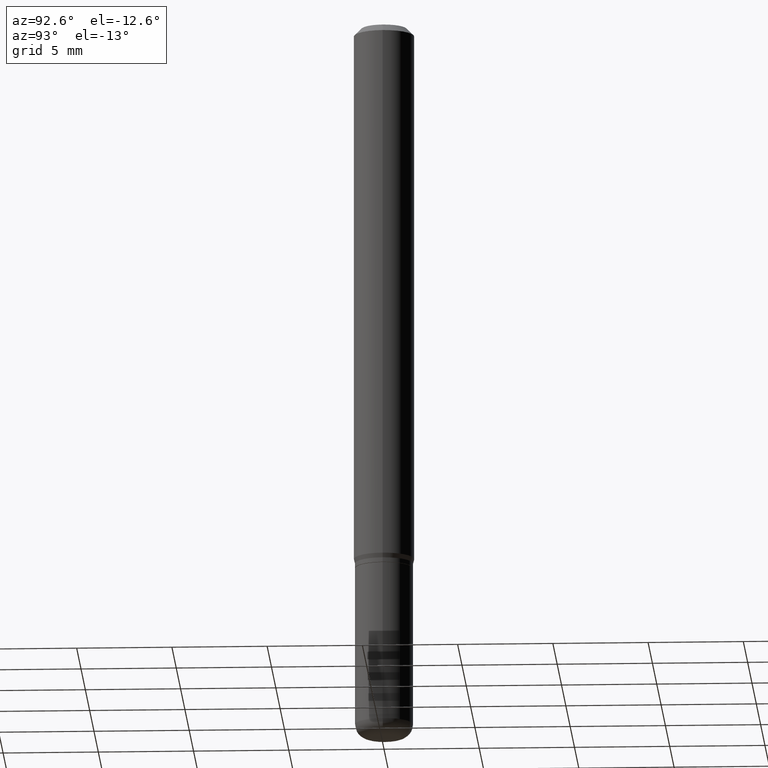
[diagram: clean part render]
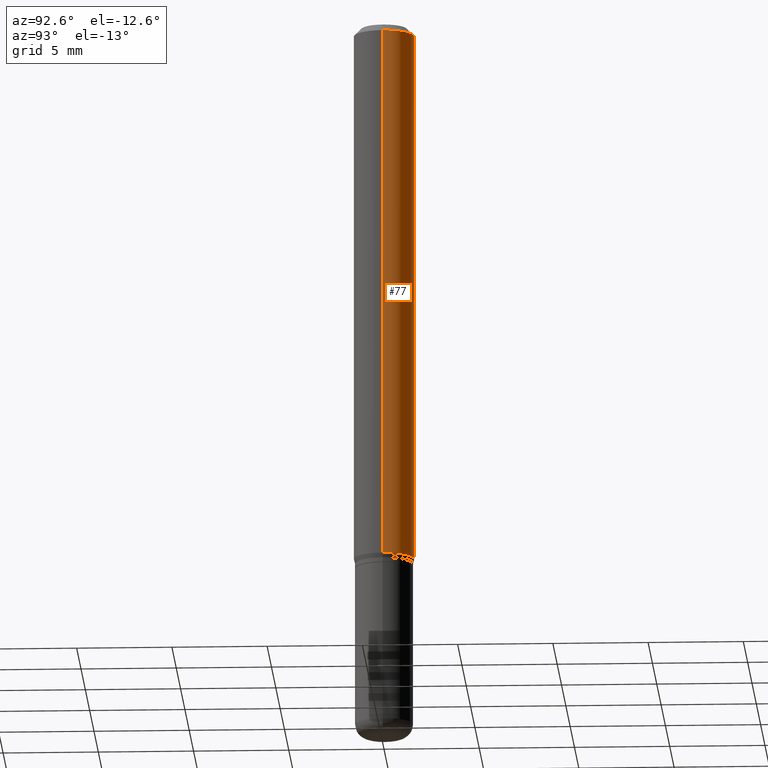
[diagram: same view with one face highlighted and labeled with its STEP entity id]
A machine part, auxiliary view. The second image highlights one B-rep face of the part: STEP entity #77.
In plain terms, the highlighted cylindrical surface (edge-blend (fillet) strip) has radius 1.5875 mm, axis along (-0, 0, 1).
Its self-contained STEP definition (entity closure, byte-faithful):
#20 = EDGE_CURVE ( 'NONE', #300, #424, #265, .T. ) ;
#54 = AXIS2_PLACEMENT_3D ( 'NONE', #264, #63, #66 ) ;
#63 = DIRECTION ( 'NONE',  ( -2.445468806185136597E-29, 3.491481338843145583E-15, 1.000000000000000000 ) ) ;
#66 = DIRECTION ( 'NONE',  ( 1.000000000000000000, -6.982962677686266711E-15, 0.000000000000000000 ) ) ;
#77 = ADVANCED_FACE ( 'NONE', ( #434 ), #436, .T. ) ;
#122 = VERTEX_POINT ( 'NONE', #239 ) ;
#130 = ORIENTED_EDGE ( 'NONE', *, *, #186, .F. ) ;
#139 = DIRECTION ( 'NONE',  ( -2.445468806185136877E-29, 3.491481338843145188E-15, 1.000000000000000000 ) ) ;
#186 = EDGE_CURVE ( 'NONE', #122, #226, #321, .T. ) ;
#189 = CARTESIAN_POINT ( 'NONE',  ( 0.06250000000000000000, -4.888073874380378612E-16, -0.01499999999999970281 ) ) ;
#193 = CARTESIAN_POINT ( 'NONE',  ( 0.06250000000000000000, -4.364351673553916694E-16, 3.047610484872459871E-30 ) ) ;
#194 = DIRECTION ( 'NONE',  ( -2.445468806185136597E-29, 3.491481338843145583E-15, 1.000000000000000000 ) ) ;
#200 = DIRECTION ( 'NONE',  ( -2.445468806185136597E-29, 3.491481338843145583E-15, 1.000000000000000000 ) ) ;
#204 = VECTOR ( 'NONE', #358, 39.37007874015748143 ) ;
#206 = CARTESIAN_POINT ( 'NONE',  ( 2.740563216406686274E-29, -3.912797948517153280E-15, -1.120669872981078452 ) ) ;
#224 = ORIENTED_EDGE ( 'NONE', *, *, #262, .T. ) ;
#226 = VERTEX_POINT ( 'NONE', #189 ) ;
#239 = CARTESIAN_POINT ( 'NONE',  ( 0.06250000000000000000, -4.349233115872544950E-15, -1.120669872981078452 ) ) ;
#241 = CIRCLE ( 'NONE', #54, 0.06250000000000000000 ) ;
#262 = EDGE_CURVE ( 'NONE', #122, #300, #431, .T. ) ;
#264 = CARTESIAN_POINT ( 'NONE',  ( 3.668203209277632395E-31, -5.237222008264614861E-17, -0.01499999999999970281 ) ) ;
#265 = LINE ( 'NONE', #386, #420 ) ;
#300 = VERTEX_POINT ( 'NONE', #373 ) ;
#321 = LINE ( 'NONE', #193, #204 ) ;
#326 = DIRECTION ( 'NONE',  ( 1.000000000000000000, -6.982962677686266711E-15, 4.876176775795935793E-29 ) ) ;
#329 = AXIS2_PLACEMENT_3D ( 'NONE', #518, #194, #326 ) ;
#358 = DIRECTION ( 'NONE',  ( -2.445468806185136877E-29, 3.491481338843145188E-15, 1.000000000000000000 ) ) ;
#368 = ORIENTED_EDGE ( 'NONE', *, *, #484, .F. ) ;
#373 = CARTESIAN_POINT ( 'NONE',  ( -0.06250000000000000000, -3.468708738667090664E-15, -1.120669872981078452 ) ) ;
#376 = ORIENTED_EDGE ( 'NONE', *, *, #20, .T. ) ;
#380 = CARTESIAN_POINT ( 'NONE',  ( -0.06250000000000000000, -1.538495874449837169E-15, -0.01499999999999970281 ) ) ;
#386 = CARTESIAN_POINT ( 'NONE',  ( -0.06250000000000000000, 4.440892098500626162E-16, -3.074334431409316114E-30 ) ) ;
#420 = VECTOR ( 'NONE', #139, 39.37007874015748143 ) ;
#424 = VERTEX_POINT ( 'NONE', #380 ) ;
#431 = CIRCLE ( 'NONE', #485, 0.06250000000000000000 ) ;
#434 = FACE_OUTER_BOUND ( 'NONE', #462, .T. ) ;
#436 = CYLINDRICAL_SURFACE ( 'NONE', #329, 0.06250000000000000000 ) ;
#462 = EDGE_LOOP ( 'NONE', ( #224, #376, #368, #130 ) ) ;
#484 = EDGE_CURVE ( 'NONE', #226, #424, #241, .T. ) ;
#485 = AXIS2_PLACEMENT_3D ( 'NONE', #206, #200, #491 ) ;
#491 = DIRECTION ( 'NONE',  ( 1.000000000000000000, -6.982962677686270655E-15, 0.000000000000000000 ) ) ;
#518 = CARTESIAN_POINT ( 'NONE',  ( 0.000000000000000000, 0.000000000000000000, 0.000000000000000000 ) ) ;